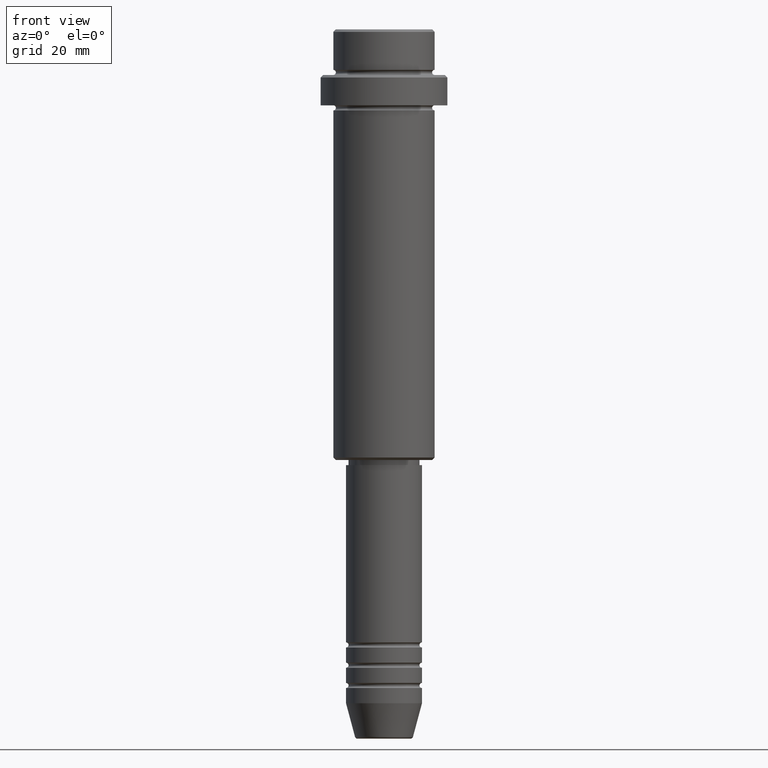
[diagram: clean part render]
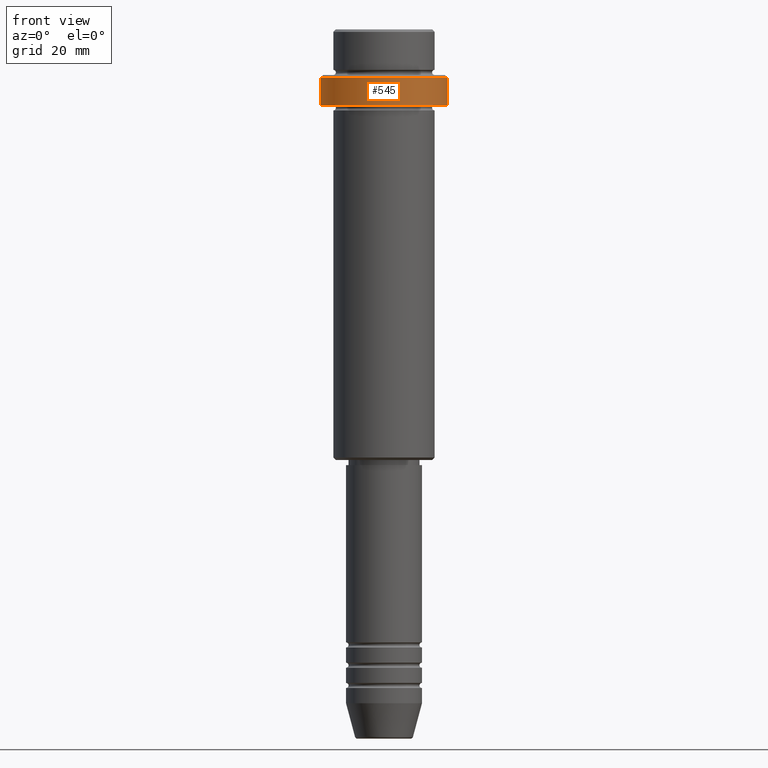
[diagram: same view with one face highlighted and labeled with its STEP entity id]
A machine part, front view. The second image highlights one B-rep face of the part: STEP entity #545.
In plain terms, the highlighted cylindrical surface (partial cylindrical patch) has radius 12.5 mm, axis along (-0, -0, 1).
Its self-contained STEP definition (entity closure, byte-faithful):
#16 = CARTESIAN_POINT ( 'NONE',  ( -12.50000000000000000, 1.530808498934191521E-15, -9.500000000000031974 ) ) ;
#101 = AXIS2_PLACEMENT_3D ( 'NONE', #1172, #1274, #1268 ) ;
#136 = ORIENTED_EDGE ( 'NONE', *, *, #832, .F. ) ;
#160 = VERTEX_POINT ( 'NONE', #974 ) ;
#175 = ORIENTED_EDGE ( 'NONE', *, *, #1240, .T. ) ;
#180 = ORIENTED_EDGE ( 'NONE', *, *, #585, .T. ) ;
#196 = CARTESIAN_POINT ( 'NONE',  ( 0.000000000000000000, 0.000000000000000000, 0.000000000000000000 ) ) ;
#233 = LINE ( 'NONE', #454, #1146 ) ;
#263 = CIRCLE ( 'NONE', #1169, 12.50000000000000000 ) ;
#329 = AXIS2_PLACEMENT_3D ( 'NONE', #196, #1151, #952 ) ;
#342 = EDGE_LOOP ( 'NONE', ( #136, #180, #175, #1119 ) ) ;
#431 = DIRECTION ( 'NONE',  ( 0.000000000000000000, 0.000000000000000000, -1.000000000000000000 ) ) ;
#454 = CARTESIAN_POINT ( 'NONE',  ( -12.50000000000000000, 1.530808498934191521E-15, 0.000000000000000000 ) ) ;
#525 = CARTESIAN_POINT ( 'NONE',  ( 12.50000000000000000, 0.000000000000000000, 0.000000000000000000 ) ) ;
#545 = ADVANCED_FACE ( 'NONE', ( #611 ), #816, .T. ) ;
#585 = EDGE_CURVE ( 'NONE', #1233, #807, #868, .T. ) ;
#611 = FACE_OUTER_BOUND ( 'NONE', #342, .T. ) ;
#662 = DIRECTION ( 'NONE',  ( 1.000000000000000000, 0.000000000000000000, 0.000000000000000000 ) ) ;
#741 = CARTESIAN_POINT ( 'NONE',  ( -12.50000000000000000, 1.530808498934191521E-15, -15.00000000000000000 ) ) ;
#769 = DIRECTION ( 'NONE',  ( -0.000000000000000000, -0.000000000000000000, 1.000000000000000000 ) ) ;
#785 = VERTEX_POINT ( 'NONE', #16 ) ;
#807 = VERTEX_POINT ( 'NONE', #1291 ) ;
#816 = CYLINDRICAL_SURFACE ( 'NONE', #329, 12.50000000000000000 ) ;
#832 = EDGE_CURVE ( 'NONE', #1233, #785, #233, .T. ) ;
#850 = EDGE_CURVE ( 'NONE', #160, #785, #263, .T. ) ;
#855 = DIRECTION ( 'NONE',  ( -0.000000000000000000, -0.000000000000000000, 1.000000000000000000 ) ) ;
#868 = CIRCLE ( 'NONE', #101, 12.50000000000000000 ) ;
#952 = DIRECTION ( 'NONE',  ( 1.000000000000000000, 0.000000000000000000, 0.000000000000000000 ) ) ;
#974 = CARTESIAN_POINT ( 'NONE',  ( 12.50000000000000000, 0.000000000000000000, -9.500000000000031974 ) ) ;
#1079 = CARTESIAN_POINT ( 'NONE',  ( 0.000000000000000000, 0.000000000000000000, -9.500000000000031974 ) ) ;
#1093 = LINE ( 'NONE', #525, #1261 ) ;
#1119 = ORIENTED_EDGE ( 'NONE', *, *, #850, .T. ) ;
#1146 = VECTOR ( 'NONE', #769, 1000.000000000000000 ) ;
#1151 = DIRECTION ( 'NONE',  ( -0.000000000000000000, -0.000000000000000000, 1.000000000000000000 ) ) ;
#1169 = AXIS2_PLACEMENT_3D ( 'NONE', #1079, #431, #662 ) ;
#1172 = CARTESIAN_POINT ( 'NONE',  ( 0.000000000000000000, 0.000000000000000000, -15.00000000000000000 ) ) ;
#1233 = VERTEX_POINT ( 'NONE', #741 ) ;
#1240 = EDGE_CURVE ( 'NONE', #807, #160, #1093, .T. ) ;
#1261 = VECTOR ( 'NONE', #855, 1000.000000000000000 ) ;
#1268 = DIRECTION ( 'NONE',  ( 1.000000000000000000, 0.000000000000000000, 0.000000000000000000 ) ) ;
#1274 = DIRECTION ( 'NONE',  ( -0.000000000000000000, -0.000000000000000000, 1.000000000000000000 ) ) ;
#1291 = CARTESIAN_POINT ( 'NONE',  ( 12.50000000000000000, 0.000000000000000000, -15.00000000000000000 ) ) ;